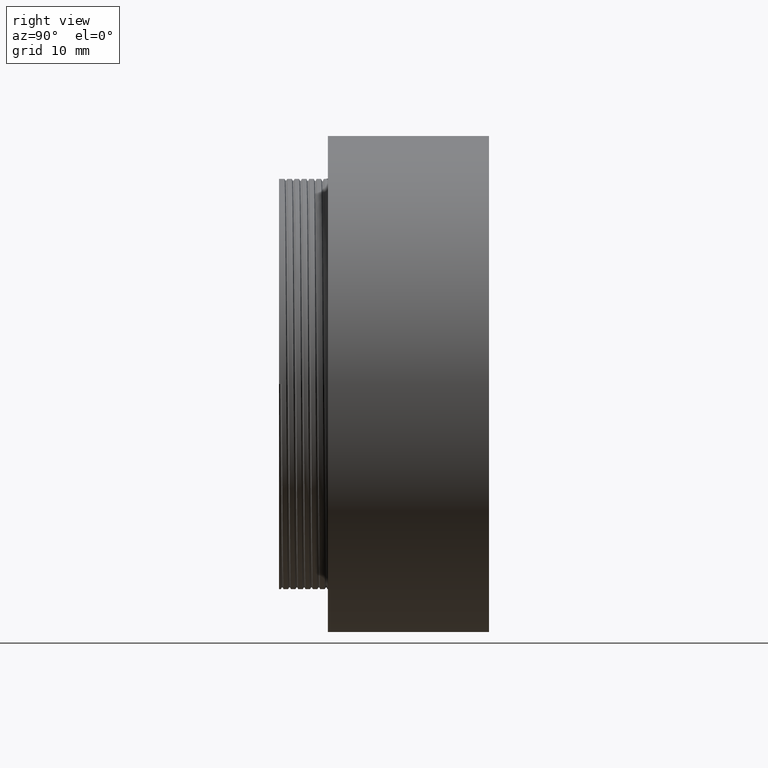
[diagram: clean part render]
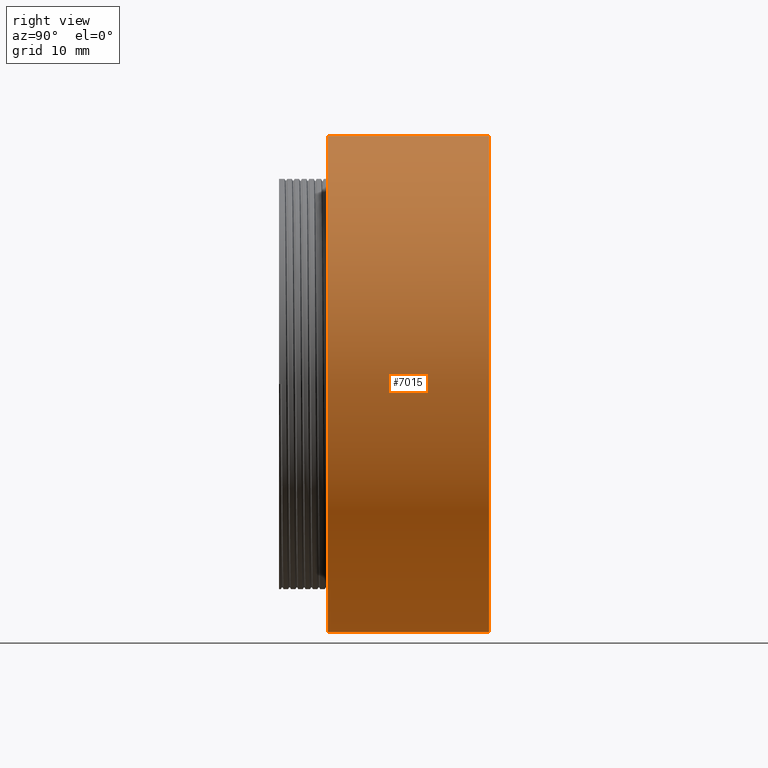
[diagram: same view with one face highlighted and labeled with its STEP entity id]
A machine part, right view. The second image highlights one B-rep face of the part: STEP entity #7015.
In plain terms, the highlighted cylindrical surface (partial cylindrical patch) has radius 25.4 mm, axis along (-0, -1, -0).
Its self-contained STEP definition (entity closure, byte-faithful):
#125 = CARTESIAN_POINT ( 'NONE',  ( 3.110602869834276865E-15, 21.50000000000000000, 25.39999999999999858 ) ) ;
#267 = VERTEX_POINT ( 'NONE', #1237 ) ;
#323 = AXIS2_PLACEMENT_3D ( 'NONE', #6105, #1284, #6643 ) ;
#326 = FACE_OUTER_BOUND ( 'NONE', #5728, .T. ) ;
#493 = EDGE_CURVE ( 'NONE', #267, #2261, #6477, .T. ) ;
#885 = CIRCLE ( 'NONE', #7039, 25.39999999999999858 ) ;
#935 = LINE ( 'NONE', #6936, #6352 ) ;
#1045 = CARTESIAN_POINT ( 'NONE',  ( 3.110602869834276865E-15, 0.000000000000000000, 25.39999999999999858 ) ) ;
#1237 = CARTESIAN_POINT ( 'NONE',  ( 0.000000000000000000, 5.000000000000000888, -25.39999999999999858 ) ) ;
#1284 = DIRECTION ( 'NONE',  ( -0.000000000000000000, -1.000000000000000000, -0.000000000000000000 ) ) ;
#1633 = DIRECTION ( 'NONE',  ( 0.000000000000000000, 0.000000000000000000, -1.000000000000000000 ) ) ;
#1635 = EDGE_CURVE ( 'NONE', #1889, #2261, #2745, .T. ) ;
#1834 = VERTEX_POINT ( 'NONE', #6647 ) ;
#1889 = VERTEX_POINT ( 'NONE', #125 ) ;
#2032 = DIRECTION ( 'NONE',  ( -0.000000000000000000, -1.000000000000000000, -0.000000000000000000 ) ) ;
#2261 = VERTEX_POINT ( 'NONE', #5627 ) ;
#2491 = CYLINDRICAL_SURFACE ( 'NONE', #7042, 25.39999999999999858 ) ;
#2610 = ORIENTED_EDGE ( 'NONE', *, *, #493, .F. ) ;
#2676 = ORIENTED_EDGE ( 'NONE', *, *, #1635, .T. ) ;
#2745 = LINE ( 'NONE', #1045, #4174 ) ;
#2951 = DIRECTION ( 'NONE',  ( -0.000000000000000000, -1.000000000000000000, -0.000000000000000000 ) ) ;
#2989 = CARTESIAN_POINT ( 'NONE',  ( 0.000000000000000000, 0.000000000000000000, 0.000000000000000000 ) ) ;
#3888 = DIRECTION ( 'NONE',  ( -0.000000000000000000, -1.000000000000000000, -0.000000000000000000 ) ) ;
#4174 = VECTOR ( 'NONE', #3888, 1000.000000000000000 ) ;
#4922 = ORIENTED_EDGE ( 'NONE', *, *, #6182, .F. ) ;
#5135 = EDGE_CURVE ( 'NONE', #1834, #1889, #885, .T. ) ;
#5262 = DIRECTION ( 'NONE',  ( -0.000000000000000000, -1.000000000000000000, -0.000000000000000000 ) ) ;
#5627 = CARTESIAN_POINT ( 'NONE',  ( 3.110602869834276865E-15, 5.000000000000000888, 25.39999999999999858 ) ) ;
#5728 = EDGE_LOOP ( 'NONE', ( #6204, #2676, #2610, #4922 ) ) ;
#6105 = CARTESIAN_POINT ( 'NONE',  ( 0.000000000000000000, 5.000000000000000888, 0.000000000000000000 ) ) ;
#6182 = EDGE_CURVE ( 'NONE', #1834, #267, #935, .T. ) ;
#6204 = ORIENTED_EDGE ( 'NONE', *, *, #5135, .T. ) ;
#6352 = VECTOR ( 'NONE', #5262, 1000.000000000000000 ) ;
#6354 = DIRECTION ( 'NONE',  ( 0.000000000000000000, 0.000000000000000000, -1.000000000000000000 ) ) ;
#6477 = CIRCLE ( 'NONE', #323, 25.39999999999999858 ) ;
#6535 = CARTESIAN_POINT ( 'NONE',  ( 0.000000000000000000, 21.50000000000000000, 0.000000000000000000 ) ) ;
#6643 = DIRECTION ( 'NONE',  ( 0.000000000000000000, 0.000000000000000000, -1.000000000000000000 ) ) ;
#6647 = CARTESIAN_POINT ( 'NONE',  ( 0.000000000000000000, 21.50000000000000000, -25.39999999999999858 ) ) ;
#6936 = CARTESIAN_POINT ( 'NONE',  ( 0.000000000000000000, 0.000000000000000000, -25.39999999999999858 ) ) ;
#7015 = ADVANCED_FACE ( 'NONE', ( #326 ), #2491, .T. ) ;
#7039 = AXIS2_PLACEMENT_3D ( 'NONE', #6535, #2032, #1633 ) ;
#7042 = AXIS2_PLACEMENT_3D ( 'NONE', #2989, #2951, #6354 ) ;